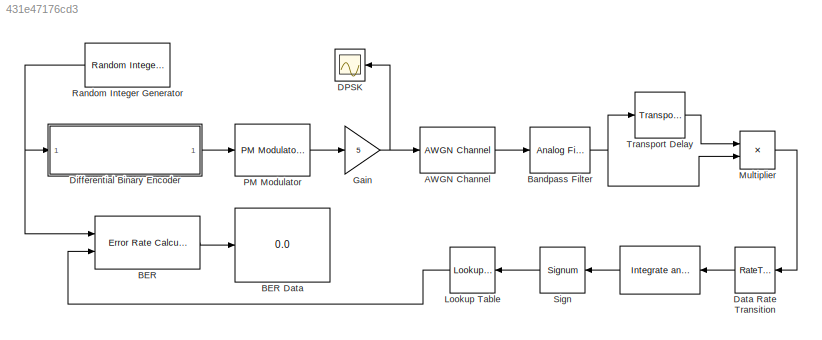
MODEL slx_431e47176cd3
KIND model
BLOCK [Reference]    REF=commfilt2/Integrate
and Dump
  LockScale = off
  Ports = [1, 1]
  SourceBlock = commfilt2/Integrate\nand Dump
  SourceType = Integrate and Dump
  accumFracLength = 30
  accumMode = Inherit via internal rule
  accumWordLength = 32
  nodump = off
  obssamples = 500
  offsetsamples = 0
  outputFracLength = 30
  outputMode = Same as accumulator
  outputWordLength = 32
  overflowMode = off
  roundingMode = Floor
BLOCK [Reference] AWGN Channel  REF=commchan3/AWGN
Channel
  EbNodB = 50
  EsNodB = 10
  InputProcessing = Inherited (this choice will be removed - see release notes)
  Ports = [1, 1]
  Ps = 12.5
  SNRdB = 12
  SourceBlock = commchan3/AWGN\nChannel
  SourceType = AWGN Channel
  Tsym = 1e-3
  UserDataPersistent = on
  bitsPerSym = 1
  noiseMode = Signal to noise ratio  (Eb/No)
  seed = randseed
  variance = 0
BLOCK [Reference] BER  REF=commsink2/Error Rate
Calculation
  N = 3
  PMode = Port
  Ports = [2, 1]
  RsMode2 = off
  SourceBlock = commsink2/Error Rate\nCalculation
  SourceType = Error Rate Calculation
  WsName = ErrorVec
  cp_mode = Entire frame
  maxBits = 1e6
  numErr = 100
  st_delay = 0
  stop = off
  subframe = []
BLOCK [Display] BER Data
  Decimation = 1
  Format = long
  Ports = [1]
BLOCK [Reference] Bandpass Filter  REF=dsparch4/Analog
Filter Design
  N = 9
  Ports = [1, 1]
  Rp = 2
  Rs = 40
  SourceBlock = dsparch4/Analog\nFilter Design
  SourceType = Analog Filter Design
  Whi = 42000*pi
  Wlo = 38000*pi
  filttype = Bandpass
  method = Butterworth
BLOCK [Scope] DPSK
  DataFormat = StructureWithTime
  Floating = off
  NumInputPorts = 1
  Ports = [1]
  SampleTime = 0
  ShowLegends = off
  YMax = 6
  YMin = -6
BLOCK [RateTransition] Data Rate Transition
  OutPortSampleTime = 2e-6
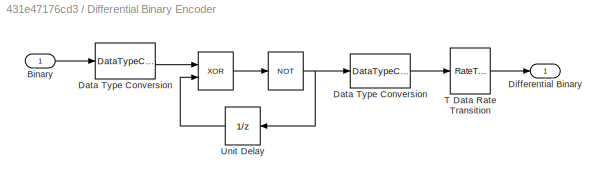
BLOCK [SubSystem] Differential Binary Encoder
  Ports = [1, 1]
  RequestExecContextInheritance = off
BLOCK [Logic] Differential Binary Encoder/ 
  IconShape = distinctive
  Operator = NOT
  Ports = [1, 1]
BLOCK [Logic] Differential Binary Encoder/  
  IconShape = distinctive
  Operator = XOR
  Ports = [2, 1]
BLOCK [Inport] Differential Binary Encoder/Binary
  IconDisplay = Port number
BLOCK [DataTypeConversion] Differential Binary Encoder/Data Type Conversion
  OutDataTypeStr = double
  RndMeth = Floor
  SaturateOnIntegerOverflow = off
BLOCK [DataTypeConversion] Differential Binary Encoder/Data Type Conversion 
  OutDataTypeStr = boolean
  RndMeth = Floor
  SaturateOnIntegerOverflow = off
BLOCK [Outport] Differential Binary Encoder/Differential Binary
  IconDisplay = Port number
BLOCK [RateTransition] Differential Binary Encoder/T Data Rate Transition
  OutPortSampleTime = 2e-6
BLOCK [UnitDelay] Differential Binary Encoder/Unit Delay
  SampleTime = -1
BLOCK [Gain] Gain
  Gain = 5
  OutDataTypeStr = Inherit: Inherit via internal rule
  ParamDataTypeStr = Inherit: Inherit via internal rule
  SaturateOnIntegerOverflow = off
BLOCK [Lookup_n-D] Lookup Table
  BreakpointsForDimension1 = [-1,0,1]
  InternalRulePriority = Speed
  NumberOfTableDimensions = 1
  Ports = [1, 1]
  RndMeth = Simplest
  Table = [0,0,1]
BLOCK [Product] Multiplier
  InputSameDT = off
  OutDataTypeStr = Inherit: Inherit via internal rule
  Ports = [2, 1]
  SaturateOnIntegerOverflow = off
BLOCK [Reference] PM Modulator  REF=commanapbnd3/PM
Modulator
Passband
  Fc = 20000
  Kc = pi
  Ph = pi
  Ports = [1, 1]
  SourceBlock = commanapbnd3/PM\nModulator\nPassband
  SourceType = PM Modulator Passband
BLOCK [Reference] Random Integer Generator  REF=commrandsrc2/Random Integer
Generator
  Ports = [0, 1]
  SourceBlock = commrandsrc2/Random Integer\nGenerator
  SourceType = Random Integer Generator
  Ts = 1e-3
  frameBased = off
  mul = 2
  orient = on
  outDataType = double
  sampPerFrame = 50
  seed = randseed
BLOCK [Signum] Sign
BLOCK [TransportDelay] Transport Delay
  DelayTime = .001
  Ports = [1, 1]
LINE  :1 -> Sign:1
LINE AWGN Channel:1 -> Bandpass Filter:1
LINE BER:1 -> BER Data:1
NET Bandpass Filter:1 -> Multiplier:2, Transport Delay:1
LINE Data Rate Transition:1 ->  :1
LINE Differential Binary Encoder/  :1 -> Differential Binary Encoder/ :1
NET Differential Binary Encoder/ :1 -> Differential Binary Encoder/Data Type Conversion:1, Differential Binary Encoder/Unit Delay:1
LINE Differential Binary Encoder/Binary:1 -> Differential Binary Encoder/Data Type Conversion :1
LINE Differential Binary Encoder/Data Type Conversion :1 -> Differential Binary Encoder/  :1
LINE Differential Binary Encoder/Data Type Conversion:1 -> Differential Binary Encoder/T Data Rate Transition:1
LINE Differential Binary Encoder/T Data Rate Transition:1 -> Differential Binary Encoder/Differential Binary:1
LINE Differential Binary Encoder/Unit Delay:1 -> Differential Binary Encoder/  :2
LINE Differential Binary Encoder:1 -> PM Modulator:1
NET Gain:1 -> AWGN Channel:1, DPSK:1
LINE Lookup Table:1 -> BER:2
LINE Multiplier:1 -> Data Rate Transition:1
LINE PM Modulator:1 -> Gain:1
NET Random Integer Generator:1 -> BER:1, Differential Binary Encoder:1
LINE Sign:1 -> Lookup Table:1
LINE Transport Delay:1 -> Multiplier:1
note: NET lines group one-source signal fan-out (src -> all destinations, sorted); 1:1 wires keep LINE
